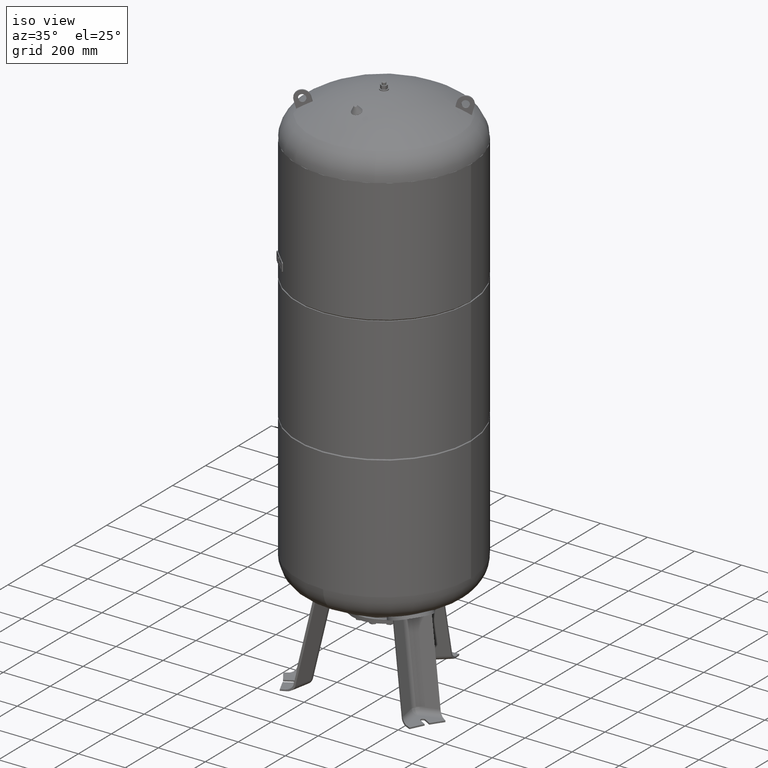
[diagram: clean part render]
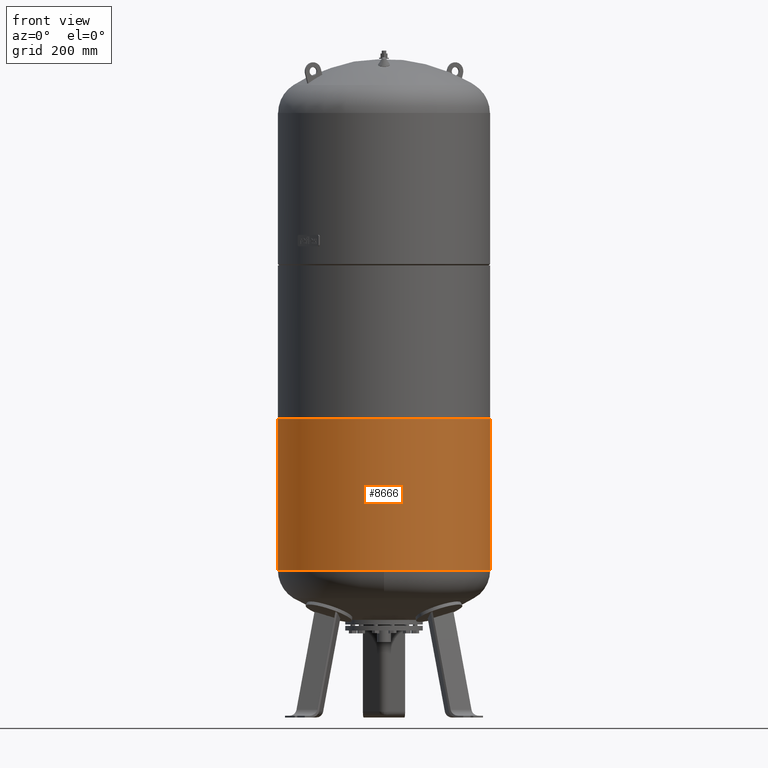
[diagram: tour spotlight — one face highlighted and labeled with its STEP entity id]
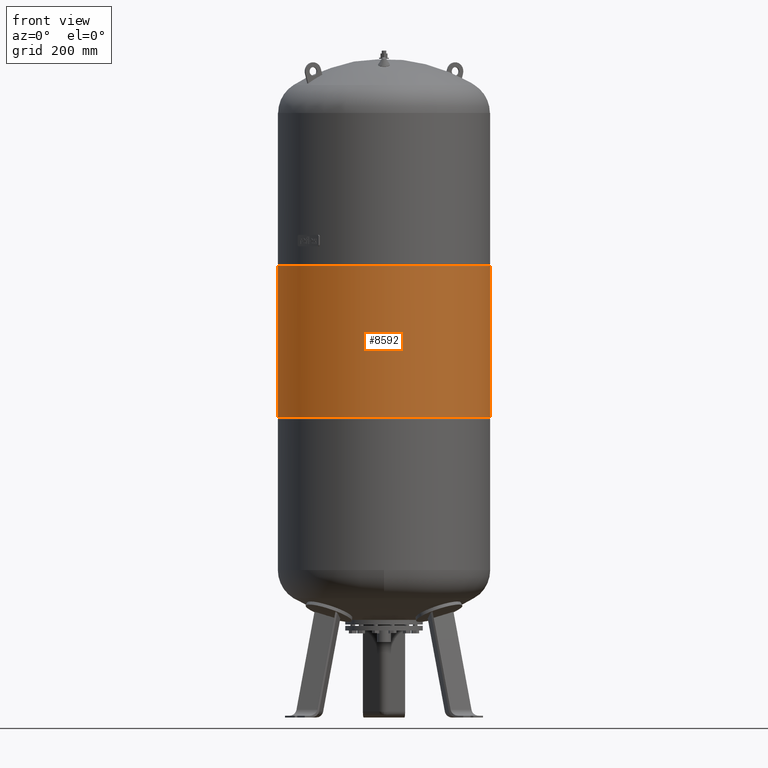
[diagram: tour spotlight — one face highlighted and labeled with its STEP entity id]
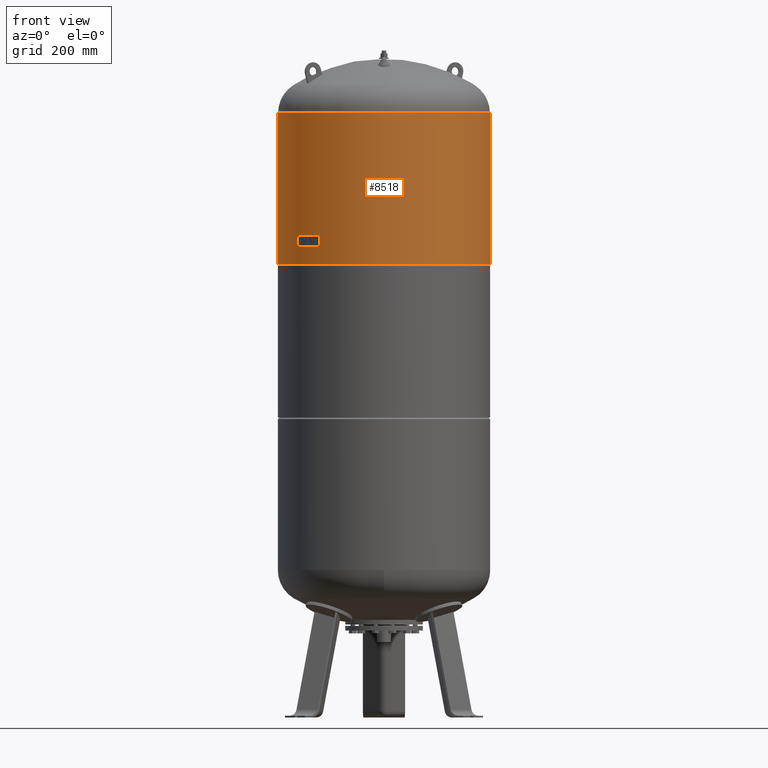
[diagram: tour spotlight — one face highlighted and labeled with its STEP entity id]
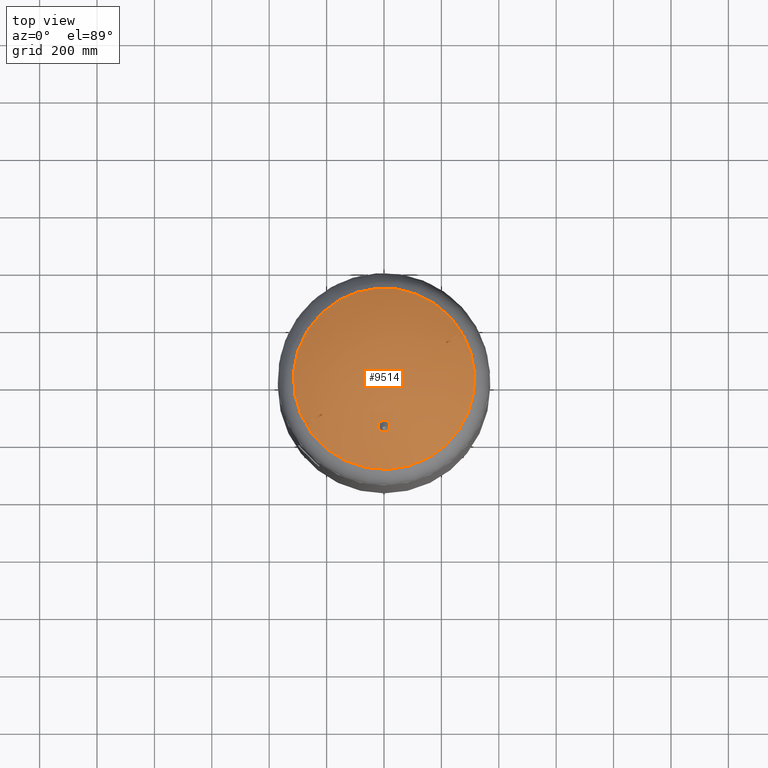
[diagram: tour spotlight — one face highlighted and labeled with its STEP entity id]
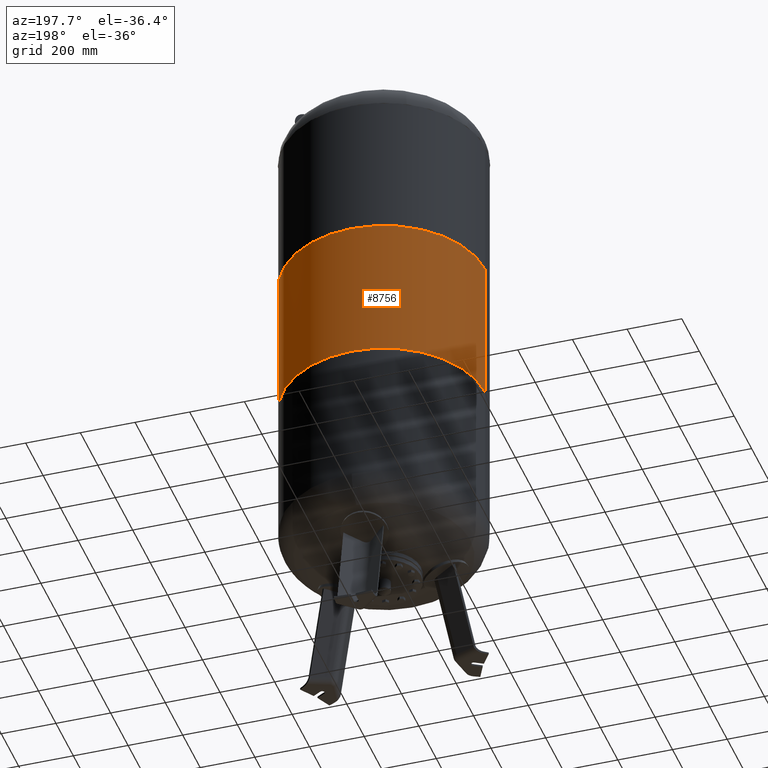
[diagram: tour spotlight — one face highlighted and labeled with its STEP entity id]
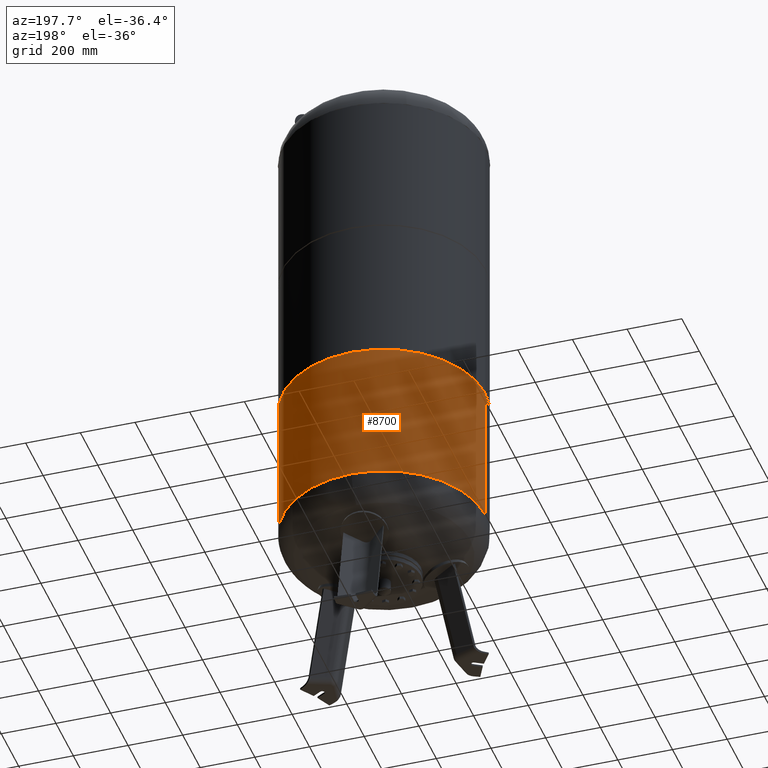
[diagram: tour spotlight — one face highlighted and labeled with its STEP entity id]
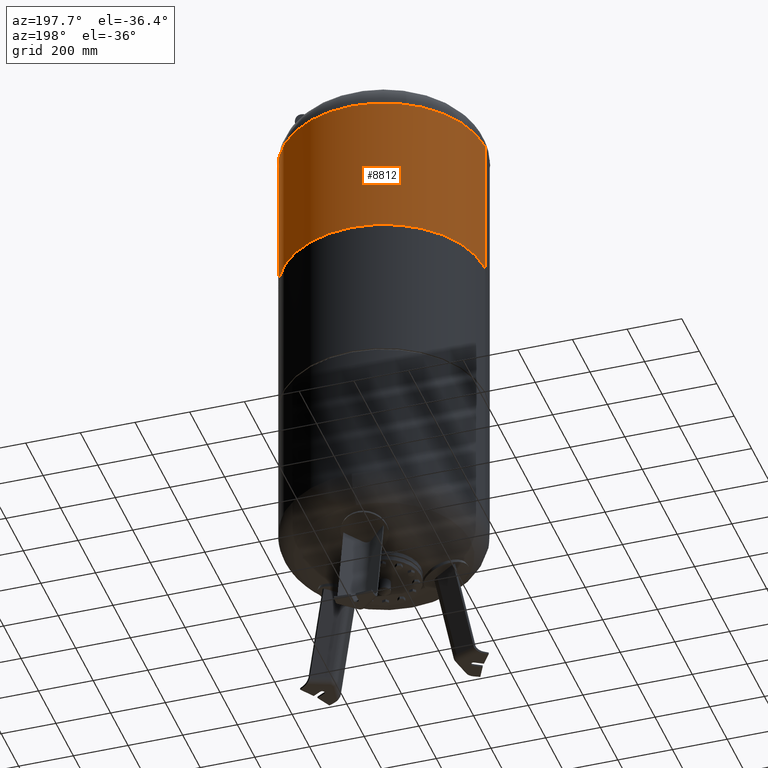
[diagram: tour spotlight — one face highlighted and labeled with its STEP entity id]
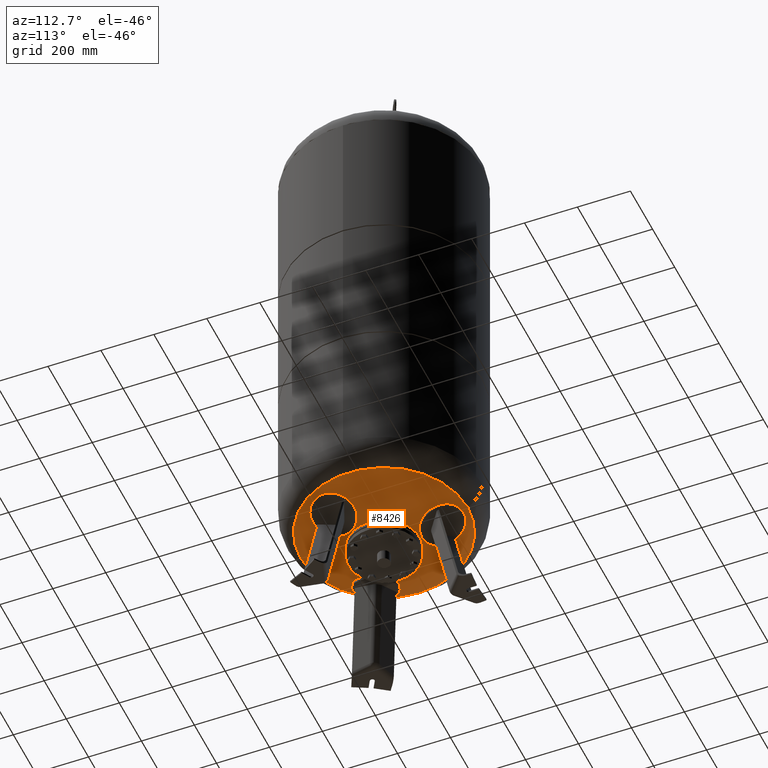
[diagram: tour spotlight — one face highlighted and labeled with its STEP entity id]
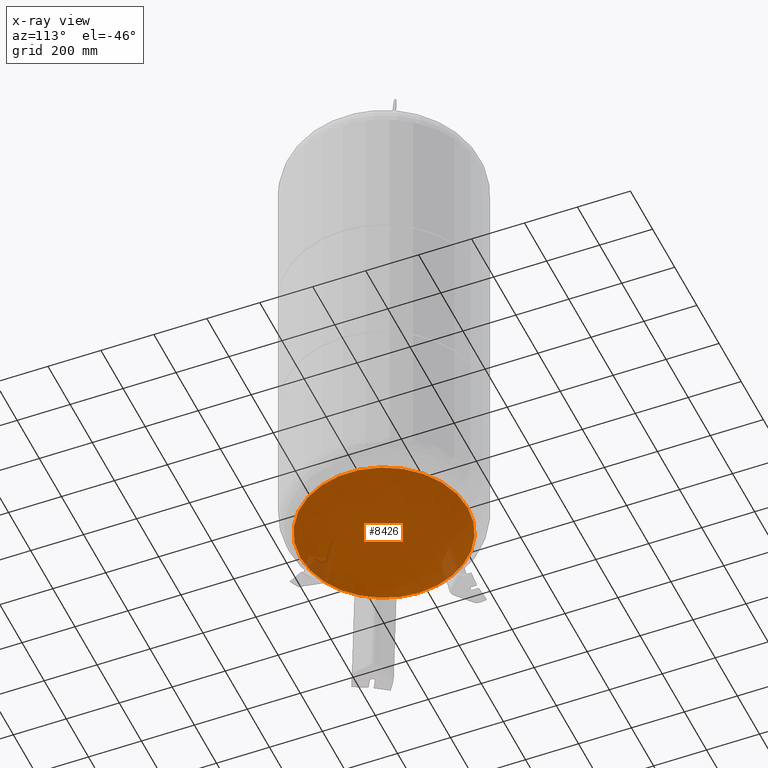
[diagram: x-ray of the same camera — body ghosted, this tour face saturated]
A machine part: a face-by-face anatomy tour. The part has 441 B-rep faces; the first image is the clean iso view, then the 8 largest visible faces are spotlighted one at a time (largest first), each with its STEP entity span.

Face 1 — front view, entity #8666. In plain terms, the highlighted cylindrical surface (partial cylindrical patch) has radius 370 mm, axis along (0, 0, 1).
Definition (entity closure, byte-faithful):
#8600=CARTESIAN_POINT('',(370.000000000000230,0.0,1039.666666666666500));
#8601=VERTEX_POINT('',#8600);
#8617=CARTESIAN_POINT('',(-370.000000000000060,-4.531044E-014,1039.666666666666500));
#8618=VERTEX_POINT('',#8617);
#8625=CARTESIAN_POINT('',(-5.667479E-015,0.0,1039.666666666666500));
#8626=DIRECTION('',(0.0,0.0,1.0));
#8627=DIRECTION('',(1.0,0.0,0.0));
#8628=AXIS2_PLACEMENT_3D('',#8625,#8626,#8627);
#8629=CIRCLE('',#8628,370.000000000000230);
#8630=EDGE_CURVE('',#8618,#8601,#8629,.T.);
#8635=CARTESIAN_POINT('',(-1.117772E-014,0.0,776.833333333333030));
#8636=DIRECTION('',(2.096478E-017,0.0,1.0));
#8637=DIRECTION('',(1.0,0.0,0.0));
#8638=AXIS2_PLACEMENT_3D('',#8635,#8636,#8637);
#8639=CYLINDRICAL_SURFACE('',#8638,370.000000000000060);
#8640=CARTESIAN_POINT('',(369.999999999999940,0.0,513.999999999999890));
#8641=VERTEX_POINT('',#8640);
#8642=CARTESIAN_POINT('',(370.000000000000230,0.0,1039.666666666666500));
#8643=DIRECTION('',(0.0,0.0,-1.0));
#8644=VECTOR('',#8643,525.666666666666630);
#8645=LINE('',#8642,#8644);
#8646=EDGE_CURVE('',#8601,#8641,#8645,.T.);
#8647=ORIENTED_EDGE('',*,*,#8646,.F.);
#8648=ORIENTED_EDGE('',*,*,#8630,.F.);
#8649=CARTESIAN_POINT('',(-370.000000000000060,-4.531044E-014,514.0));
#8650=VERTEX_POINT('',#8649);
#8651=CARTESIAN_POINT('',(-370.000000000000060,-4.531044E-014,1039.666666666666500));
#8652=DIRECTION('',(0.0,0.0,-1.0));
#8653=VECTOR('',#8652,525.666666666666520);
#8654=LINE('',#8651,#8653);
#8655=EDGE_CURVE('',#8618,#8650,#8654,.T.);
#8656=ORIENTED_EDGE('',*,*,#8655,.T.);
#8657=CARTESIAN_POINT('',(-1.668796E-014,0.0,514.0));
#8658=DIRECTION('',(0.0,0.0,1.0));
#8659=DIRECTION('',(1.0,0.0,0.0));
#8660=AXIS2_PLACEMENT_3D('',#8657,#8658,#8659);
#8661=CIRCLE('',#8660,369.999999999999940);
#8662=EDGE_CURVE('',#8650,#8641,#8661,.T.);
#8663=ORIENTED_EDGE('',*,*,#8662,.T.);
#8664=EDGE_LOOP('',(#8647,#8648,#8656,#8663));
#8665=FACE_OUTER_BOUND('',#8664,.T.);
#8666=ADVANCED_FACE('',(#8665),#8639,.T.);

Face 2 — front view, entity #8592. In plain terms, the highlighted cylindrical surface (partial cylindrical patch) has radius 370 mm, axis along (0, 0, 1).
Definition (entity closure, byte-faithful):
#8551=CARTESIAN_POINT('',(-3.944305E-030,0.0,1309.999999999999800));
#8552=DIRECTION('',(2.096478E-017,0.0,1.0));
#8553=DIRECTION('',(1.0,0.0,0.0));
#8554=AXIS2_PLACEMENT_3D('',#8551,#8552,#8553);
#8555=CYLINDRICAL_SURFACE('',#8554,369.999999999999430);
#8556=CARTESIAN_POINT('',(369.999999999999550,0.0,1575.333333333333300));
#8557=VERTEX_POINT('',#8556);
#8558=CARTESIAN_POINT('',(369.999999999999370,0.0,1044.666666666666500));
#8559=VERTEX_POINT('',#8558);
#8560=CARTESIAN_POINT('',(369.999999999999550,0.0,1575.333333333333300));
#8561=DIRECTION('',(0.0,0.0,-1.0));
#8562=VECTOR('',#8561,530.666666666666740);
#8563=LINE('',#8560,#8562);
#8564=EDGE_CURVE('',#8557,#8559,#8563,.T.);
#8565=ORIENTED_EDGE('',*,*,#8564,.F.);
#8566=CARTESIAN_POINT('',(-369.999999999999430,-4.531044E-014,1575.333333333333300));
#8567=VERTEX_POINT('',#8566);
#8568=CARTESIAN_POINT('',(5.562655E-015,0.0,1575.333333333333300));
#8569=DIRECTION('',(0.0,0.0,1.0));
#8570=DIRECTION('',(1.0,0.0,0.0));
#8571=AXIS2_PLACEMENT_3D('',#8568,#8569,#8570);
#8572=CIRCLE('',#8571,369.999999999999550);
#8573=EDGE_CURVE('',#8567,#8557,#8572,.T.);
#8574=ORIENTED_EDGE('',*,*,#8573,.F.);
#8575=CARTESIAN_POINT('',(-369.999999999999430,-4.531044E-014,1044.666666666666500));
#8576=VERTEX_POINT('',#8575);
#8577=CARTESIAN_POINT('',(-369.999999999999430,-4.531044E-014,1575.333333333333300));
#8578=DIRECTION('',(0.0,0.0,-1.0));
#8579=VECTOR('',#8578,530.666666666666740);
#8580=LINE('',#8577,#8579);
#8581=EDGE_CURVE('',#8567,#8576,#8580,.T.);
#8582=ORIENTED_EDGE('',*,*,#8581,.T.);
#8583=CARTESIAN_POINT('',(-5.562655E-015,0.0,1044.666666666666500));
#8584=DIRECTION('',(0.0,0.0,1.0));
#8585=DIRECTION('',(1.0,0.0,0.0));
#8586=AXIS2_PLACEMENT_3D('',#8583,#8584,#8585);
#8587=CIRCLE('',#8586,369.999999999999370);
#8588=EDGE_CURVE('',#8576,#8559,#8587,.T.);
#8589=ORIENTED_EDGE('',*,*,#8588,.T.);
#8590=EDGE_LOOP('',(#8565,#8574,#8582,#8589));
#8591=FACE_OUTER_BOUND('',#8590,.T.);
#8592=ADVANCED_FACE('',(#8591),#8555,.T.);

Face 3 — front view, entity #8518. In plain terms, the highlighted cylindrical surface (partial cylindrical patch) has radius 370 mm, axis along (0, 0, 1).
Definition (entity closure, byte-faithful):
#8477=CARTESIAN_POINT('',(1.117772E-014,0.0,1843.166666666666500));
#8478=DIRECTION('',(2.096478E-017,0.0,1.0));
#8479=DIRECTION('',(1.0,0.0,0.0));
#8480=AXIS2_PLACEMENT_3D('',#8477,#8478,#8479);
#8481=CYLINDRICAL_SURFACE('',#8480,369.999999999999770);
#8482=CARTESIAN_POINT('',(370.0,0.0,2106.0));
#8483=VERTEX_POINT('',#8482);
#8484=CARTESIAN_POINT('',(369.999999999999550,0.0,1580.333333333333500));
#8485=VERTEX_POINT('',#8484);
#8486=CARTESIAN_POINT('',(370.0,0.0,2106.0));
#8487=DIRECTION('',(0.0,0.0,-1.0));
#8488=VECTOR('',#8487,525.666666666666520);
#8489=LINE('',#8486,#8488);
#8490=EDGE_CURVE('',#8483,#8485,#8489,.T.);
#8491=ORIENTED_EDGE('',*,*,#8490,.F.);
#8492=CARTESIAN_POINT('',(-369.999999999999770,-4.531044E-014,2106.0));
#8493=VERTEX_POINT('',#8492);
#8494=CARTESIAN_POINT('',(1.668796E-014,0.0,2106.0));
#8495=DIRECTION('',(0.0,0.0,1.0));
#8496=DIRECTION('',(1.0,0.0,0.0));
#8497=AXIS2_PLACEMENT_3D('',#8494,#8495,#8496);
#8498=CIRCLE('',#8497,370.0);
#8499=EDGE_CURVE('',#8493,#8483,#8498,.T.);
#8500=ORIENTED_EDGE('',*,*,#8499,.F.);
#8501=CARTESIAN_POINT('',(-369.999999999999550,-4.531044E-014,1580.333333333333500));
#8502=VERTEX_POINT('',#8501);
#8503=CARTESIAN_POINT('',(-369.999999999999770,-4.531044E-014,2106.0));
#8504=DIRECTION('',(0.0,0.0,-1.0));
#8505=VECTOR('',#8504,525.666666666666520);
#8506=LINE('',#8503,#8505);
#8507=EDGE_CURVE('',#8493,#8502,#8506,.T.);
#8508=ORIENTED_EDGE('',*,*,#8507,.T.);
#8509=CARTESIAN_POINT('',(5.667479E-015,0.0,1580.333333333333500));
#8510=DIRECTION('',(0.0,0.0,1.0));
#8511=DIRECTION('',(1.0,0.0,0.0));
#8512=AXIS2_PLACEMENT_3D('',#8509,#8510,#8511);
#8513=CIRCLE('',#8512,369.999999999999550);
#8514=EDGE_CURVE('',#8502,#8485,#8513,.T.);
#8515=ORIENTED_EDGE('',*,*,#8514,.T.);
#8516=EDGE_LOOP('',(#8491,#8500,#8508,#8515));
#8517=FACE_OUTER_BOUND('',#8516,.T.);
#8518=ADVANCED_FACE('',(#8517),#8481,.T.);

Face 4 — top view, entity #9514. In plain terms, the highlighted spherical surface has radius 594 mm.
Definition (entity closure, byte-faithful):
#8883=CARTESIAN_POINT('',(157.965517241379270,-273.604301705966460,2204.014494274920300));
#8884=VERTEX_POINT('',#8883);
#8900=CARTESIAN_POINT('',(-157.965517241379250,273.604301705966410,2204.014494274920300));
#8901=VERTEX_POINT('',#8900);
#8909=CARTESIAN_POINT('',(273.604301705966460,157.965517241379250,2204.014494274920300));
#8910=VERTEX_POINT('',#8909);
#8911=CARTESIAN_POINT('',(-1.292814E-015,-2.004580E-014,2204.014494274920300));
#8912=DIRECTION('',(-1.060575E-016,-6.123234E-017,-1.0));
#8913=DIRECTION('',(0.866025403784439,0.500000000000000,-1.224647E-016));
#8914=AXIS2_PLACEMENT_3D('',#8911,#8912,#8913);
#8915=CIRCLE('',#8914,315.931034482758610);
#8916=EDGE_CURVE('',#8901,#8910,#8915,.T.);
#8918=CARTESIAN_POINT('',(-1.292814E-015,-2.004580E-014,2204.014494274920300));
#8919=DIRECTION('',(-1.060575E-016,-6.123234E-017,-1.0));
#8920=DIRECTION('',(0.866025403784439,0.500000000000000,-1.224647E-016));
#8921=AXIS2_PLACEMENT_3D('',#8918,#8919,#8920);
#8922=CIRCLE('',#8921,315.931034482758610);
#8923=EDGE_CURVE('',#8910,#8884,#8922,.T.);
#9059=CARTESIAN_POINT('',(215.032738994050080,127.613311357928240,2239.805868495306200));
#9060=VERTEX_POINT('',#9059);
#9061=CARTESIAN_POINT('',(264.376557238610250,156.101978104269390,2209.500942393024600));
#9062=VERTEX_POINT('',#9061);
#9063=CARTESIAN_POINT('',(-1.499999999995883,2.598076211345996,1701.0));
#9064=DIRECTION('',(-0.500000000000006,0.866025403784435,0.0));
#9065=DIRECTION('',(0.0,0.0,1.0));
#9066=AXIS2_PLACEMENT_3D('',#9063,#9064,#9065);
#9067=CIRCLE('',#9066,593.992424194113820);
#9068=EDGE_CURVE('',#9060,#9062,#9067,.T.);
#9111=CARTESIAN_POINT('',(218.032738994050020,122.417158935221560,2239.805868495306200));
#9112=VERTEX_POINT('',#9111);
#9113=CARTESIAN_POINT('',(81.041876268855148,46.789549079456478,1675.075117590819000));
#9114=DIRECTION('',(-0.834590199910595,-0.481850876581413,0.266981143436978));
#9115=DIRECTION('',(-0.231212452547840,-0.133490571718489,-0.963701753162815));
#9116=AXIS2_PLACEMENT_3D('',#9113,#9114,#9115);
#9117=CIRCLE('',#9116,586.009260046148940);
#9118=EDGE_CURVE('',#9112,#9060,#9117,.T.);
#9182=CARTESIAN_POINT('',(267.376557238610190,150.905825681562790,2209.500942393024600));
#9183=VERTEX_POINT('',#9182);
#9184=CARTESIAN_POINT('',(133.621058863222740,77.146154304085570,1658.255305554289400));
#9185=DIRECTION('',(0.834590199910595,0.481850876581413,-0.266981143436978));
#9186=DIRECTION('',(0.231212452547840,0.133490571718489,0.963701753162815));
#9187=AXIS2_PLACEMENT_3D('',#9184,#9185,#9186);
#9188=CIRCLE('',#9187,572.016411129177530);
#9189=EDGE_CURVE('',#9062,#9183,#9188,.T.);
#9253=CARTESIAN_POINT('',(1.500000000004162,-2.598076211360627,1701.0));
#9254=DIRECTION('',(0.500000000000006,-0.866025403784435,0.0));
#9255=DIRECTION('',(0.0,0.0,-1.0));
#9256=AXIS2_PLACEMENT_3D('',#9253,#9254,#9255);
#9257=CIRCLE('',#9256,593.992424194113710);
#9258=EDGE_CURVE('',#9183,#9112,#9257,.T.);
#9275=CARTESIAN_POINT('',(-215.032738994045760,-127.613311357935440,2239.805868495306200));
#9276=VERTEX_POINT('',#9275);
#9277=CARTESIAN_POINT('',(-264.376557238605870,-156.101978104276610,2209.500942393024600));
#9278=VERTEX_POINT('',#9277);
#9279=CARTESIAN_POINT('',(1.499999999999974,-2.598076211353372,1701.0));
#9280=DIRECTION('',(0.500000000000006,-0.866025403784435,0.0));
#9281=DIRECTION('',(0.0,0.0,-1.0));
#9282=AXIS2_PLACEMENT_3D('',#9279,#9280,#9281);
#9283=CIRCLE('',#9282,593.992424194113820);
#9284=EDGE_CURVE('',#9276,#9278,#9283,.T.);
#9327=CARTESIAN_POINT('',(-218.032738994045790,-122.417158935228780,2239.805868495306200));
#9328=VERTEX_POINT('',#9327);
#9329=CARTESIAN_POINT('',(-81.041876268855106,-46.789549079456712,1675.075117590819000));
#9330=DIRECTION('',(0.834590199910595,0.481850876581413,0.266981143436977));
#9331=DIRECTION('',(-0.231212452547839,-0.133490571718489,0.963701753162815));
#9332=AXIS2_PLACEMENT_3D('',#9329,#9330,#9331);
#9333=CIRCLE('',#9332,586.009260046148940);
#9334=EDGE_CURVE('',#9328,#9276,#9333,.T.);
#9398=CARTESIAN_POINT('',(-267.376557238605810,-150.905825681569980,2209.500942393024600));
#9399=VERTEX_POINT('',#9398);
#9400=CARTESIAN_POINT('',(-133.621058863222710,-77.146154304085812,1658.255305554289400));
#9401=DIRECTION('',(-0.834590199910595,-0.481850876581413,-0.266981143436977));
#9402=DIRECTION('',(0.231212452547839,0.133490571718489,-0.963701753162815));
#9403=AXIS2_PLACEMENT_3D('',#9400,#9401,#9402);
#9404=CIRCLE('',#9403,572.016411129177530);
#9405=EDGE_CURVE('',#9278,#9399,#9404,.T.);
#9469=CARTESIAN_POINT('',(-1.500000000000086,2.598076211353275,1701.0));
#9470=DIRECTION('',(-0.500000000000006,0.866025403784435,0.0));
#9471=DIRECTION('',(0.0,0.0,1.0));
#9472=AXIS2_PLACEMENT_3D('',#9469,#9470,#9471);
#9473=CIRCLE('',#9472,593.992424194113820);
#9474=EDGE_CURVE('',#9399,#9328,#9473,.T.);
#9486=CARTESIAN_POINT('',(-8.440154E-015,-1.308693E-013,1701.0));
#9487=DIRECTION('',(0.500000000000000,-0.866025403784439,1.836970E-016));
#9488=DIRECTION('',(-0.866025403784439,-0.500000000000000,1.224647E-016));
#9489=AXIS2_PLACEMENT_3D('',#9486,#9487,#9488);
#9490=SPHERICAL_SURFACE('',#9489,594.0);
#9491=ORIENTED_EDGE('',*,*,#9118,.T.);
#9492=ORIENTED_EDGE('',*,*,#9068,.T.);
#9493=ORIENTED_EDGE('',*,*,#9189,.T.);
#9494=ORIENTED_EDGE('',*,*,#9258,.T.);
#9495=EDGE_LOOP('',(#9491,#9492,#9493,#9494));
#9496=FACE_OUTER_BOUND('',#9495,.T.);
#9497=ORIENTED_EDGE('',*,*,#9334,.T.);
#9498=ORIENTED_EDGE('',*,*,#9284,.T.);
#9499=ORIENTED_EDGE('',*,*,#9405,.T.);
#9500=ORIENTED_EDGE('',*,*,#9474,.T.);
#9501=EDGE_LOOP('',(#9497,#9498,#9499,#9500));
#9502=FACE_BOUND('',#9501,.T.);
#9503=ORIENTED_EDGE('',*,*,#8923,.F.);
#9504=ORIENTED_EDGE('',*,*,#8916,.F.);
#9505=CARTESIAN_POINT('',(-1.292814E-015,-2.004580E-014,2204.014494274920300));
#9506=DIRECTION('',(-1.060575E-016,-6.123234E-017,-1.0));
#9507=DIRECTION('',(0.866025403784439,0.500000000000000,-1.224647E-016));
#9508=AXIS2_PLACEMENT_3D('',#9505,#9506,#9507);
#9509=CIRCLE('',#9508,315.931034482758610);
#9510=EDGE_CURVE('',#8884,#8901,#9509,.T.);
#9511=ORIENTED_EDGE('',*,*,#9510,.F.);
#9512=EDGE_LOOP('',(#9503,#9504,#9511));
#9513=FACE_BOUND('',#9512,.T.);
#9514=ADVANCED_FACE('',(#9496,#9502,#9513),#9490,.T.);

Face 5 — auxiliary view, entity #8756. In plain terms, the highlighted cylindrical surface (partial cylindrical patch) has radius 370 mm, axis along (0, 0, 1).
Definition (entity closure, byte-faithful):
#8556=CARTESIAN_POINT('',(369.999999999999550,0.0,1575.333333333333300));
#8557=VERTEX_POINT('',#8556);
#8558=CARTESIAN_POINT('',(369.999999999999370,0.0,1044.666666666666500));
#8559=VERTEX_POINT('',#8558);
#8560=CARTESIAN_POINT('',(369.999999999999550,0.0,1575.333333333333300));
#8561=DIRECTION('',(0.0,0.0,-1.0));
#8562=VECTOR('',#8561,530.666666666666740);
#8563=LINE('',#8560,#8562);
#8564=EDGE_CURVE('',#8557,#8559,#8563,.T.);
#8566=CARTESIAN_POINT('',(-369.999999999999430,-4.531044E-014,1575.333333333333300));
#8567=VERTEX_POINT('',#8566);
#8575=CARTESIAN_POINT('',(-369.999999999999430,-4.531044E-014,1044.666666666666500));
#8576=VERTEX_POINT('',#8575);
#8577=CARTESIAN_POINT('',(-369.999999999999430,-4.531044E-014,1575.333333333333300));
#8578=DIRECTION('',(0.0,0.0,-1.0));
#8579=VECTOR('',#8578,530.666666666666740);
#8580=LINE('',#8577,#8579);
#8581=EDGE_CURVE('',#8567,#8576,#8580,.T.);
#8724=CARTESIAN_POINT('',(-5.562655E-015,0.0,1044.666666666666500));
#8725=DIRECTION('',(0.0,0.0,1.0));
#8726=DIRECTION('',(1.0,0.0,0.0));
#8727=AXIS2_PLACEMENT_3D('',#8724,#8725,#8726);
#8728=CIRCLE('',#8727,369.999999999999370);
#8729=EDGE_CURVE('',#8559,#8576,#8728,.T.);
#8739=CARTESIAN_POINT('',(-3.944305E-030,0.0,1309.999999999999800));
#8740=DIRECTION('',(2.096478E-017,0.0,1.0));
#8741=DIRECTION('',(1.0,0.0,0.0));
#8742=AXIS2_PLACEMENT_3D('',#8739,#8740,#8741);
#8743=CYLINDRICAL_SURFACE('',#8742,369.999999999999430);
#8744=ORIENTED_EDGE('',*,*,#8564,.T.);
#8745=ORIENTED_EDGE('',*,*,#8729,.T.);
#8746=ORIENTED_EDGE('',*,*,#8581,.F.);
#8747=CARTESIAN_POINT('',(5.562655E-015,0.0,1575.333333333333300));
#8748=DIRECTION('',(0.0,0.0,1.0));
#8749=DIRECTION('',(1.0,0.0,0.0));
#8750=AXIS2_PLACEMENT_3D('',#8747,#8748,#8749);
#8751=CIRCLE('',#8750,369.999999999999550);
#8752=EDGE_CURVE('',#8557,#8567,#8751,.T.);
#8753=ORIENTED_EDGE('',*,*,#8752,.F.);
#8754=EDGE_LOOP('',(#8744,#8745,#8746,#8753));
#8755=FACE_OUTER_BOUND('',#8754,.T.);
#8756=ADVANCED_FACE('',(#8755),#8743,.T.);

Face 6 — auxiliary view, entity #8700. In plain terms, the highlighted cylindrical surface (partial cylindrical patch) has radius 370 mm, axis along (0, 0, 1).
Definition (entity closure, byte-faithful):
#8600=CARTESIAN_POINT('',(370.000000000000230,0.0,1039.666666666666500));
#8601=VERTEX_POINT('',#8600);
#8617=CARTESIAN_POINT('',(-370.000000000000060,-4.531044E-014,1039.666666666666500));
#8618=VERTEX_POINT('',#8617);
#8640=CARTESIAN_POINT('',(369.999999999999940,0.0,513.999999999999890));
#8641=VERTEX_POINT('',#8640);
#8642=CARTESIAN_POINT('',(370.000000000000230,0.0,1039.666666666666500));
#8643=DIRECTION('',(0.0,0.0,-1.0));
#8644=VECTOR('',#8643,525.666666666666630);
#8645=LINE('',#8642,#8644);
#8646=EDGE_CURVE('',#8601,#8641,#8645,.T.);
#8649=CARTESIAN_POINT('',(-370.000000000000060,-4.531044E-014,514.0));
#8650=VERTEX_POINT('',#8649);
#8651=CARTESIAN_POINT('',(-370.000000000000060,-4.531044E-014,1039.666666666666500));
#8652=DIRECTION('',(0.0,0.0,-1.0));
#8653=VECTOR('',#8652,525.666666666666520);
#8654=LINE('',#8651,#8653);
#8655=EDGE_CURVE('',#8618,#8650,#8654,.T.);
#8672=CARTESIAN_POINT('',(-1.668796E-014,0.0,514.0));
#8673=DIRECTION('',(0.0,0.0,1.0));
#8674=DIRECTION('',(1.0,0.0,0.0));
#8675=AXIS2_PLACEMENT_3D('',#8672,#8673,#8674);
#8676=CIRCLE('',#8675,369.999999999999940);
#8677=EDGE_CURVE('',#8641,#8650,#8676,.T.);
#8683=CARTESIAN_POINT('',(-1.117772E-014,0.0,776.833333333333030));
#8684=DIRECTION('',(2.096478E-017,0.0,1.0));
#8685=DIRECTION('',(1.0,0.0,0.0));
#8686=AXIS2_PLACEMENT_3D('',#8683,#8684,#8685);
#8687=CYLINDRICAL_SURFACE('',#8686,370.000000000000060);
#8688=ORIENTED_EDGE('',*,*,#8646,.T.);
#8689=ORIENTED_EDGE('',*,*,#8677,.T.);
#8690=ORIENTED_EDGE('',*,*,#8655,.F.);
#8691=CARTESIAN_POINT('',(-5.667479E-015,0.0,1039.666666666666500));
#8692=DIRECTION('',(0.0,0.0,1.0));
#8693=DIRECTION('',(1.0,0.0,0.0));
#8694=AXIS2_PLACEMENT_3D('',#8691,#8692,#8693);
#8695=CIRCLE('',#8694,370.000000000000230);
#8696=EDGE_CURVE('',#8601,#8618,#8695,.T.);
#8697=ORIENTED_EDGE('',*,*,#8696,.F.);
#8698=EDGE_LOOP('',(#8688,#8689,#8690,#8697));
#8699=FACE_OUTER_BOUND('',#8698,.T.);
#8700=ADVANCED_FACE('',(#8699),#8687,.T.);

Face 7 — auxiliary view, entity #8812. In plain terms, the highlighted cylindrical surface (partial cylindrical patch) has radius 370 mm, axis along (0, 0, 1).
Definition (entity closure, byte-faithful):
#8482=CARTESIAN_POINT('',(370.0,0.0,2106.0));
#8483=VERTEX_POINT('',#8482);
#8484=CARTESIAN_POINT('',(369.999999999999550,0.0,1580.333333333333500));
#8485=VERTEX_POINT('',#8484);
#8486=CARTESIAN_POINT('',(370.0,0.0,2106.0));
#8487=DIRECTION('',(0.0,0.0,-1.0));
#8488=VECTOR('',#8487,525.666666666666520);
#8489=LINE('',#8486,#8488);
#8490=EDGE_CURVE('',#8483,#8485,#8489,.T.);
#8492=CARTESIAN_POINT('',(-369.999999999999770,-4.531044E-014,2106.0));
#8493=VERTEX_POINT('',#8492);
#8501=CARTESIAN_POINT('',(-369.999999999999550,-4.531044E-014,1580.333333333333500));
#8502=VERTEX_POINT('',#8501);
#8503=CARTESIAN_POINT('',(-369.999999999999770,-4.531044E-014,2106.0));
#8504=DIRECTION('',(0.0,0.0,-1.0));
#8505=VECTOR('',#8504,525.666666666666520);
#8506=LINE('',#8503,#8505);
#8507=EDGE_CURVE('',#8493,#8502,#8506,.T.);
#8785=CARTESIAN_POINT('',(5.667479E-015,0.0,1580.333333333333500));
#8786=DIRECTION('',(0.0,0.0,1.0));
#8787=DIRECTION('',(1.0,0.0,0.0));
#8788=AXIS2_PLACEMENT_3D('',#8785,#8786,#8787);
#8789=CIRCLE('',#8788,369.999999999999550);
#8790=EDGE_CURVE('',#8485,#8502,#8789,.T.);
#8795=CARTESIAN_POINT('',(1.117772E-014,0.0,1843.166666666666500));
#8796=DIRECTION('',(2.096478E-017,0.0,1.0));
#8797=DIRECTION('',(1.0,0.0,0.0));
#8798=AXIS2_PLACEMENT_3D('',#8795,#8796,#8797);
#8799=CYLINDRICAL_SURFACE('',#8798,369.999999999999770);
#8800=ORIENTED_EDGE('',*,*,#8490,.T.);
#8801=ORIENTED_EDGE('',*,*,#8790,.T.);
#8802=ORIENTED_EDGE('',*,*,#8507,.F.);
#8803=CARTESIAN_POINT('',(1.668796E-014,0.0,2106.0));
#8804=DIRECTION('',(0.0,0.0,1.0));
#8805=DIRECTION('',(1.0,0.0,0.0));
#8806=AXIS2_PLACEMENT_3D('',#8803,#8804,#8805);
#8807=CIRCLE('',#8806,370.0);
#8808=EDGE_CURVE('',#8483,#8493,#8807,.T.);
#8809=ORIENTED_EDGE('',*,*,#8808,.F.);
#8810=EDGE_LOOP('',(#8800,#8801,#8802,#8809));
#8811=FACE_OUTER_BOUND('',#8810,.T.);
#8812=ADVANCED_FACE('',(#8811),#8799,.T.);

Face 8 — auxiliary view, entity #8426. An x-ray twin of the same camera follows (body ghosted, this face saturated) — the face is partly hidden behind the body. In plain terms, the highlighted spherical surface has radius 594 mm.
Definition (entity closure, byte-faithful):
#8365=CARTESIAN_POINT('',(0.0,-315.931034482758610,415.985505725079460));
#8366=VERTEX_POINT('',#8365);
#8382=CARTESIAN_POINT('',(-3.868912E-014,315.931034482758610,415.985505725079580));
#8383=VERTEX_POINT('',#8382);
#8391=CARTESIAN_POINT('',(-315.931034482758610,-1.671377E-014,415.985505725079520));
#8392=VERTEX_POINT('',#8391);
#8393=CARTESIAN_POINT('',(0.0,-1.671377E-014,415.985505725079520));
#8394=DIRECTION('',(0.0,0.0,1.0));
#8395=DIRECTION('',(-1.0,0.0,0.0));
#8396=AXIS2_PLACEMENT_3D('',#8393,#8394,#8395);
#8397=CIRCLE('',#8396,315.931034482758610);
#8398=EDGE_CURVE('',#8383,#8392,#8397,.T.);
#8400=CARTESIAN_POINT('',(0.0,-1.671377E-014,415.985505725079520));
#8401=DIRECTION('',(0.0,0.0,1.0));
#8402=DIRECTION('',(-1.0,0.0,0.0));
#8403=AXIS2_PLACEMENT_3D('',#8400,#8401,#8402);
#8404=CIRCLE('',#8403,315.931034482758610);
#8405=EDGE_CURVE('',#8392,#8366,#8404,.T.);
#8410=CARTESIAN_POINT('',(0.0,-1.091160E-013,919.0));
#8411=DIRECTION('',(0.0,-1.0,0.0));
#8412=DIRECTION('',(1.0,0.0,0.0));
#8413=AXIS2_PLACEMENT_3D('',#8410,#8411,#8412);
#8414=SPHERICAL_SURFACE('',#8413,594.0);
#8415=ORIENTED_EDGE('',*,*,#8405,.F.);
#8416=ORIENTED_EDGE('',*,*,#8398,.F.);
#8417=CARTESIAN_POINT('',(0.0,-1.671377E-014,415.985505725079520));
#8418=DIRECTION('',(0.0,0.0,1.0));
#8419=DIRECTION('',(-1.0,0.0,0.0));
#8420=AXIS2_PLACEMENT_3D('',#8417,#8418,#8419);
#8421=CIRCLE('',#8420,315.931034482758610);
#8422=EDGE_CURVE('',#8366,#8383,#8421,.T.);
#8423=ORIENTED_EDGE('',*,*,#8422,.F.);
#8424=EDGE_LOOP('',(#8415,#8416,#8423));
#8425=FACE_OUTER_BOUND('',#8424,.T.);
#8426=ADVANCED_FACE('',(#8425),#8414,.T.);